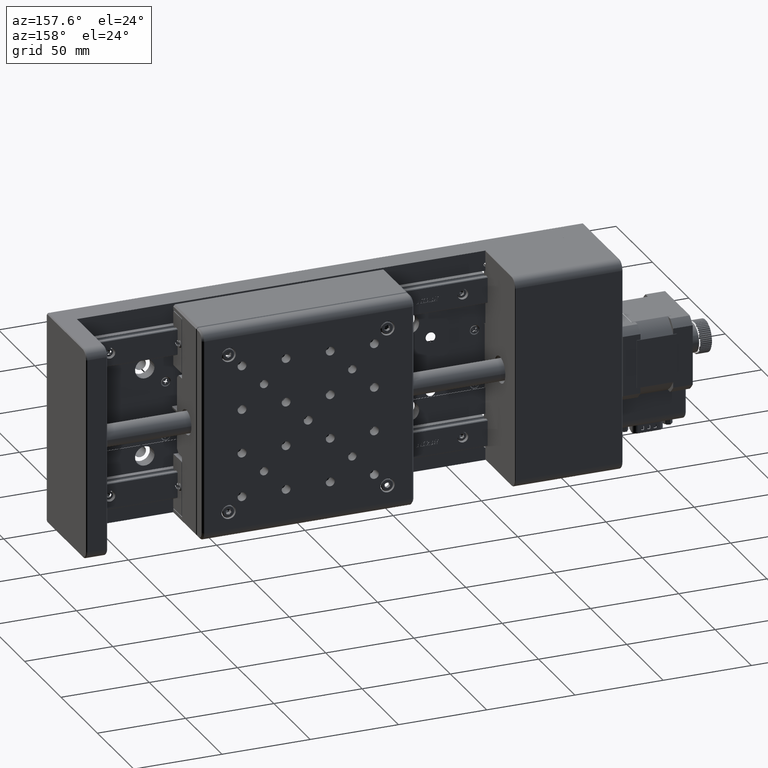
[diagram: clean part render]
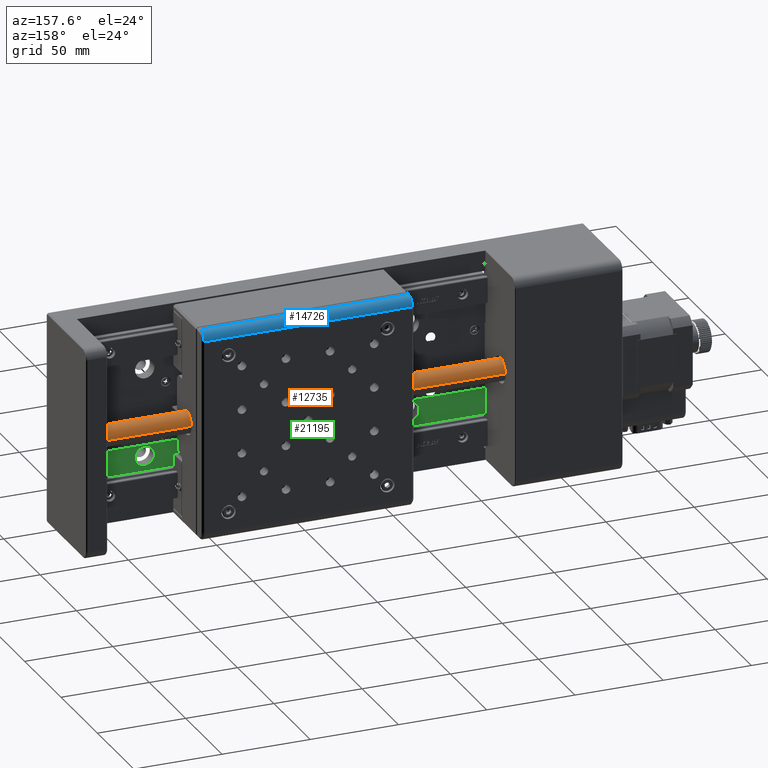
[diagram: same view with three faces highlighted in distinct colors, each labeled with its STEP entity id]
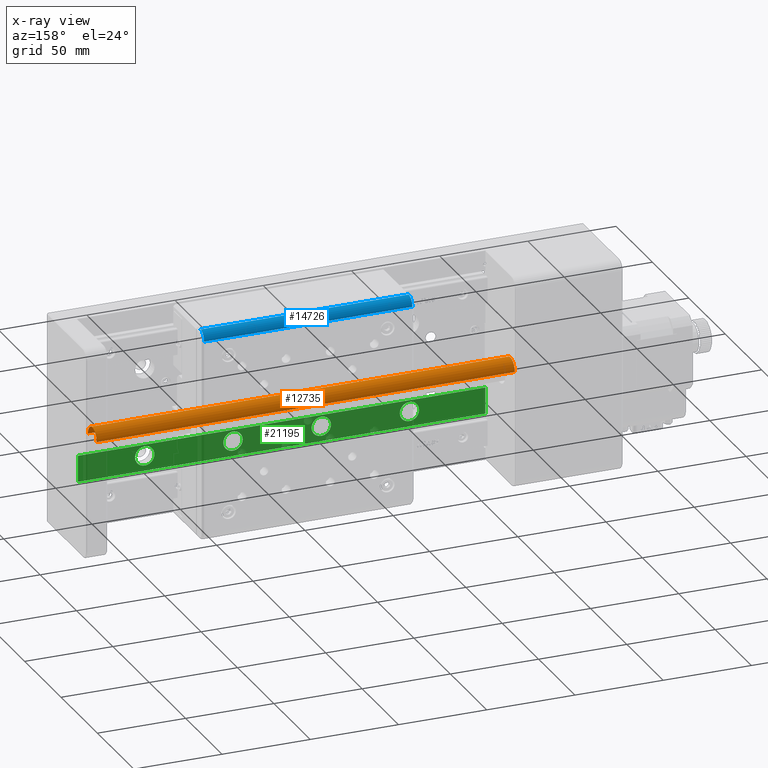
[diagram: x-ray of the same camera — body ghosted, the three highlighted faces saturated]
A machine part, auxiliary view with three faces highlighted in distinct colors.
The next image is the same camera in x-ray (body ghosted, the three faces saturated) — at least one of them is partly hidden behind the body in this view.
Their STEP definitions:

[orange] entity #12735 — the highlighted cylindrical surface (edge-blend (fillet) strip) has radius 6 mm, axis along (-1, 0, 0).
#539 = CARTESIAN_POINT ( 'NONE',  ( 63.90769514383990200, 40.00000000000188300, 39.77887723323596700 ) ) ;
#2989 = LINE ( 'NONE', #21811, #44714 ) ;
#3423 = LINE ( 'NONE', #5527, #40380 ) ;
#3605 = DIRECTION ( 'NONE',  ( -1.000000000000000000, 5.122232578805212300E-016, 6.938893494418824300E-016 ) ) ;
#4115 = DIRECTION ( 'NONE',  ( 0.0000000000000000000, -1.000000000000000000, 5.782411586589354900E-015 ) ) ;
#5527 = CARTESIAN_POINT ( 'NONE',  ( 63.90769514383990200, 40.00000000000189000, 39.77887723323588900 ) ) ;
#6024 = CARTESIAN_POINT ( 'NONE',  ( 63.90769514383990200, 34.00000000000188300, 39.77887723323591700 ) ) ;
#6176 = VERTEX_POINT ( 'NONE', #27948 ) ;
#7235 = CARTESIAN_POINT ( 'NONE',  ( 63.90769514383990200, 34.00000000000188300, 39.77887723323591700 ) ) ;
#7687 = ORIENTED_EDGE ( 'NONE', *, *, #35850, .T. ) ;
#9618 = ORIENTED_EDGE ( 'NONE', *, *, #33453, .F. ) ;
#11002 = EDGE_LOOP ( 'NONE', ( #19257, #7687, #9618, #27976 ) ) ;
#11706 = VERTEX_POINT ( 'NONE', #29613 ) ;
#12735 = ADVANCED_FACE ( 'NONE', ( #28528 ), #29136, .T. ) ;
#15036 = DIRECTION ( 'NONE',  ( 0.0000000000000000000, 1.000000000000000000, -5.782411586589351700E-015 ) ) ;
#15287 = CARTESIAN_POINT ( 'NONE',  ( -173.0923048561601000, 34.00000000000200400, 39.77887723323608800 ) ) ;
#18237 = CIRCLE ( 'NONE', #39597, 6.000000000000005300 ) ;
#19145 = VERTEX_POINT ( 'NONE', #35813 ) ;
#19257 = ORIENTED_EDGE ( 'NONE', *, *, #30438, .F. ) ;
#20824 = AXIS2_PLACEMENT_3D ( 'NONE', #6024, #40509, #25322 ) ;
#21811 = CARTESIAN_POINT ( 'NONE',  ( 63.90769514383990200, 28.00000000000187900, 39.77887723323595300 ) ) ;
#23349 = CIRCLE ( 'NONE', #24693, 6.000000000000001800 ) ;
#24693 = AXIS2_PLACEMENT_3D ( 'NONE', #15287, #3605, #4115 ) ;
#25322 = DIRECTION ( 'NONE',  ( 0.0000000000000000000, -1.000000000000000000, 5.782411586589354900E-015 ) ) ;
#27948 = CARTESIAN_POINT ( 'NONE',  ( -173.0923048561601000, 40.00000000000199700, 39.77887723323596700 ) ) ;
#27965 = EDGE_CURVE ( 'NONE', #19145, #11706, #2989, .T. ) ;
#27976 = ORIENTED_EDGE ( 'NONE', *, *, #27965, .F. ) ;
#28528 = FACE_OUTER_BOUND ( 'NONE', #11002, .T. ) ;
#29136 = CYLINDRICAL_SURFACE ( 'NONE', #20824, 6.000000000000001800 ) ;
#29613 = CARTESIAN_POINT ( 'NONE',  ( -173.0923048561601000, 28.00000000000200000, 39.77887723323612300 ) ) ;
#30438 = EDGE_CURVE ( 'NONE', #35728, #19145, #18237, .T. ) ;
#33453 = EDGE_CURVE ( 'NONE', #11706, #6176, #23349, .T. ) ;
#35728 = VERTEX_POINT ( 'NONE', #539 ) ;
#35813 = CARTESIAN_POINT ( 'NONE',  ( 63.90769514383990200, 28.00000000000187900, 39.77887723323603800 ) ) ;
#35850 = EDGE_CURVE ( 'NONE', #35728, #6176, #3423, .T. ) ;
#39376 = DIRECTION ( 'NONE',  ( -1.000000000000000000, 5.122232578805212300E-016, 6.938893494418824300E-016 ) ) ;
#39597 = AXIS2_PLACEMENT_3D ( 'NONE', #7235, #45317, #15036 ) ;
#40380 = VECTOR ( 'NONE', #39376, 1000.000000000000000 ) ;
#40509 = DIRECTION ( 'NONE',  ( -1.000000000000000000, 5.122232578805212300E-016, 6.938893494418824300E-016 ) ) ;
#44714 = VECTOR ( 'NONE', #47945, 1000.000000000000000 ) ;
#45317 = DIRECTION ( 'NONE',  ( 1.000000000000000000, -5.122232578805212300E-016, -6.938893494418824300E-016 ) ) ;
#47945 = DIRECTION ( 'NONE',  ( -1.000000000000000000, 5.122232578805212300E-016, 6.938893494418824300E-016 ) ) ;

[blue] entity #14726 — the highlighted cylindrical surface (edge-blend (fillet) strip) has radius 5 mm, axis along (1, 0, -0).
#734 = VERTEX_POINT ( 'NONE', #19056 ) ;
#1232 = EDGE_CURVE ( 'NONE', #1631, #7970, #20779, .T. ) ;
#1631 = VERTEX_POINT ( 'NONE', #15731 ) ;
#2258 = LINE ( 'NONE', #25905, #35017 ) ;
#3037 = CARTESIAN_POINT ( 'NONE',  ( 9.594010902184861000, 50.99999999999892000, 94.77887723323857500 ) ) ;
#3854 = EDGE_CURVE ( 'NONE', #734, #7970, #28297, .T. ) ;
#4845 = DIRECTION ( 'NONE',  ( -1.000000000000000000, -1.083698070157791000E-016, 1.727014250132936800E-016 ) ) ;
#5081 = ORIENTED_EDGE ( 'NONE', *, *, #3854, .F. ) ;
#5264 = AXIS2_PLACEMENT_3D ( 'NONE', #22670, #42018, #26812 ) ;
#6402 = CARTESIAN_POINT ( 'NONE',  ( -108.4059890978151500, 50.99999999999883500, 99.77887723323858900 ) ) ;
#6508 = DIRECTION ( 'NONE',  ( 1.000000000000000000, 1.083698070157791000E-016, -1.727014250132936800E-016 ) ) ;
#6661 = ORIENTED_EDGE ( 'NONE', *, *, #1232, .T. ) ;
#7970 = VERTEX_POINT ( 'NONE', #6402 ) ;
#9248 = VECTOR ( 'NONE', #4845, 1000.000000000000000 ) ;
#10721 = DIRECTION ( 'NONE',  ( -1.000000000000000000, -1.083698070157791000E-016, 1.727014250132936800E-016 ) ) ;
#14337 = DIRECTION ( 'NONE',  ( 0.0000000000000000000, -1.000000000000000000, -1.387778780781446500E-014 ) ) ;
#14710 = DIRECTION ( 'NONE',  ( 0.0000000000000000000, 1.000000000000000000, 1.387778780781446500E-014 ) ) ;
#14726 = ADVANCED_FACE ( 'NONE', ( #43271 ), #29517, .T. ) ;
#15731 = CARTESIAN_POINT ( 'NONE',  ( -108.4059890978151400, 55.99999999999890600, 94.77887723323866000 ) ) ;
#18141 = CARTESIAN_POINT ( 'NONE',  ( -49.40598909781513700, 50.99999999999891300, 94.77887723323857500 ) ) ;
#19056 = CARTESIAN_POINT ( 'NONE',  ( 9.594010902184861000, 50.99999999999884900, 99.77887723323858900 ) ) ;
#20603 = AXIS2_PLACEMENT_3D ( 'NONE', #18141, #6508, #14337 ) ;
#20779 = CIRCLE ( 'NONE', #5264, 4.999999999999997300 ) ;
#22670 = CARTESIAN_POINT ( 'NONE',  ( -108.4059890978151400, 50.99999999999890600, 94.77887723323858900 ) ) ;
#25741 = ORIENTED_EDGE ( 'NONE', *, *, #35623, .T. ) ;
#25905 = CARTESIAN_POINT ( 'NONE',  ( -49.40598909781513700, 55.99999999999891300, 94.77887723323866000 ) ) ;
#26812 = DIRECTION ( 'NONE',  ( 0.0000000000000000000, -1.000000000000000000, -1.387778780781446500E-014 ) ) ;
#28297 = LINE ( 'NONE', #49484, #9248 ) ;
#29418 = DIRECTION ( 'NONE',  ( 1.000000000000000000, 1.083698070157791000E-016, -1.727014250132936800E-016 ) ) ;
#29517 = CYLINDRICAL_SURFACE ( 'NONE', #20603, 4.999999999999997300 ) ;
#30434 = CARTESIAN_POINT ( 'NONE',  ( 9.594010902184861000, 55.99999999999892000, 94.77887723323864600 ) ) ;
#31865 = EDGE_LOOP ( 'NONE', ( #5081, #25741, #44165, #6661 ) ) ;
#33542 = VERTEX_POINT ( 'NONE', #30434 ) ;
#35017 = VECTOR ( 'NONE', #29418, 1000.000000000000000 ) ;
#35623 = EDGE_CURVE ( 'NONE', #734, #33542, #44581, .T. ) ;
#42018 = DIRECTION ( 'NONE',  ( 1.000000000000000000, 1.083698070157791000E-016, -1.727014250132936800E-016 ) ) ;
#43271 = FACE_OUTER_BOUND ( 'NONE', #31865, .T. ) ;
#44165 = ORIENTED_EDGE ( 'NONE', *, *, #44943, .F. ) ;
#44581 = CIRCLE ( 'NONE', #45877, 4.999999999999997300 ) ;
#44943 = EDGE_CURVE ( 'NONE', #1631, #33542, #2258, .T. ) ;
#45877 = AXIS2_PLACEMENT_3D ( 'NONE', #3037, #10721, #14710 ) ;
#49484 = CARTESIAN_POINT ( 'NONE',  ( 10.59401090218486300, 50.99999999999884900, 99.77887723323858900 ) ) ;

[green] entity #21195 — the highlighted planar face has unit normal (0, 1, -0).
#783 = DIRECTION ( 'NONE',  ( 0.0000000000000000000, 1.224646799147353200E-016, 1.000000000000000000 ) ) ;
#1576 = CARTESIAN_POINT ( 'NONE',  ( -79.59230485615998400, 14.00000000000000200, 14.77887723323781400 ) ) ;
#2154 = EDGE_CURVE ( 'NONE', #3589, #42386, #4619, .T. ) ;
#2536 = VERTEX_POINT ( 'NONE', #30123 ) ;
#2628 = EDGE_CURVE ( 'NONE', #24256, #23442, #39725, .T. ) ;
#2634 = ORIENTED_EDGE ( 'NONE', *, *, #35434, .F. ) ;
#2880 = DIRECTION ( 'NONE',  ( -0.0000000000000000000, 1.000000000000000000, -1.224646799147353200E-016 ) ) ;
#3589 = VERTEX_POINT ( 'NONE', #31892 ) ;
#3618 = AXIS2_PLACEMENT_3D ( 'NONE', #5224, #36028, #39560 ) ;
#3943 = ORIENTED_EDGE ( 'NONE', *, *, #36302, .F. ) ;
#4395 = EDGE_CURVE ( 'NONE', #6672, #35427, #32604, .T. ) ;
#4418 = CARTESIAN_POINT ( 'NONE',  ( -124.0923048561599700, 14.00000000000000200, 14.77887723323781400 ) ) ;
#4619 = CIRCLE ( 'NONE', #37517, 5.500000000000005300 ) ;
#4774 = EDGE_LOOP ( 'NONE', ( #37338, #48124 ) ) ;
#5085 = ORIENTED_EDGE ( 'NONE', *, *, #24659, .F. ) ;
#5224 = CARTESIAN_POINT ( 'NONE',  ( -24.09230485615997000, 14.00000000000000200, 14.77887723323781400 ) ) ;
#6672 = VERTEX_POINT ( 'NONE', #36169 ) ;
#7390 = DIRECTION ( 'NONE',  ( -1.000000000000000000, 0.0000000000000000000, 0.0000000000000000000 ) ) ;
#7434 = FACE_BOUND ( 'NONE', #4774, .T. ) ;
#8255 = VERTEX_POINT ( 'NONE', #28635 ) ;
#8318 = EDGE_LOOP ( 'NONE', ( #27261, #34021 ) ) ;
#8363 = VECTOR ( 'NONE', #32528, 1000.000000000000000 ) ;
#8698 = CARTESIAN_POINT ( 'NONE',  ( 25.90769514384003000, 14.00000000000000200, 14.77887723323781400 ) ) ;
#9081 = AXIS2_PLACEMENT_3D ( 'NONE', #40910, #33426, #22082 ) ;
#9421 = CARTESIAN_POINT ( 'NONE',  ( 63.90769514384002300, 14.00000000000000400, 21.27887723323782900 ) ) ;
#9490 = CARTESIAN_POINT ( 'NONE',  ( -167.0923048561600100, 14.00000000000000400, 21.27887723323781800 ) ) ;
#9966 = AXIS2_PLACEMENT_3D ( 'NONE', #15929, #19071, #38440 ) ;
#10327 = CARTESIAN_POINT ( 'NONE',  ( 31.40769514384003700, 14.00000000000000200, 14.77887723323781400 ) ) ;
#10387 = FACE_OUTER_BOUND ( 'NONE', #24239, .T. ) ;
#10586 = VERTEX_POINT ( 'NONE', #9490 ) ;
#11210 = ORIENTED_EDGE ( 'NONE', *, *, #31160, .F. ) ;
#11953 = PLANE ( 'NONE',  #9966 ) ;
#12127 = DIRECTION ( 'NONE',  ( -0.0000000000000000000, 1.000000000000000000, -1.224646799147353200E-016 ) ) ;
#12187 = CIRCLE ( 'NONE', #22427, 5.499999999999991100 ) ;
#12715 = DIRECTION ( 'NONE',  ( -1.000000000000000000, 0.0000000000000000000, 0.0000000000000000000 ) ) ;
#13035 = LINE ( 'NONE', #9421, #29088 ) ;
#13880 = VERTEX_POINT ( 'NONE', #22908 ) ;
#14261 = CIRCLE ( 'NONE', #3618, 5.500000000000005300 ) ;
#14381 = EDGE_CURVE ( 'NONE', #2536, #13880, #43322, .T. ) ;
#14639 = CIRCLE ( 'NONE', #31919, 5.500000000000005300 ) ;
#15526 = VERTEX_POINT ( 'NONE', #25220 ) ;
#15929 = CARTESIAN_POINT ( 'NONE',  ( 75.90769514384000200, 14.00000000000001200, 99.77887723323783600 ) ) ;
#16006 = AXIS2_PLACEMENT_3D ( 'NONE', #37380, #2880, #29551 ) ;
#16528 = VECTOR ( 'NONE', #32632, 1000.000000000000000 ) ;
#16547 = ORIENTED_EDGE ( 'NONE', *, *, #4395, .F. ) ;
#17476 = DIRECTION ( 'NONE',  ( -1.000000000000000000, 0.0000000000000000000, 0.0000000000000000000 ) ) ;
#18281 = LINE ( 'NONE', #28137, #16528 ) ;
#19071 = DIRECTION ( 'NONE',  ( 0.0000000000000000000, 1.000000000000000000, -1.224646799147353200E-016 ) ) ;
#20189 = VERTEX_POINT ( 'NONE', #26680 ) ;
#20335 = DIRECTION ( 'NONE',  ( -0.0000000000000000000, 1.000000000000000000, -1.224646799147353200E-016 ) ) ;
#21195 = ADVANCED_FACE ( 'NONE', ( #10387, #7434, #38425, #33621, #46115 ), #11953, .T. ) ;
#21507 = CARTESIAN_POINT ( 'NONE',  ( -167.0923048561600100, 13.99999999999999800, -12.22112276676221000 ) ) ;
#22024 = EDGE_LOOP ( 'NONE', ( #11210, #16547 ) ) ;
#22082 = DIRECTION ( 'NONE',  ( -1.000000000000000000, 0.0000000000000000000, 0.0000000000000000000 ) ) ;
#22371 = DIRECTION ( 'NONE',  ( -0.0000000000000000000, 1.000000000000000000, -1.224646799147353200E-016 ) ) ;
#22427 = AXIS2_PLACEMENT_3D ( 'NONE', #41413, #22896, #45208 ) ;
#22612 = EDGE_CURVE ( 'NONE', #15526, #20189, #12187, .T. ) ;
#22896 = DIRECTION ( 'NONE',  ( -0.0000000000000000000, 1.000000000000000000, -1.224646799147353200E-016 ) ) ;
#22908 = CARTESIAN_POINT ( 'NONE',  ( -29.59230485615997700, 14.00000000000000200, 14.77887723323781400 ) ) ;
#23331 = CARTESIAN_POINT ( 'NONE',  ( 63.90769514384002300, 14.00000000000000400, 21.27887723323782900 ) ) ;
#23442 = VERTEX_POINT ( 'NONE', #23331 ) ;
#24239 = EDGE_LOOP ( 'NONE', ( #5085, #2634, #42625, #3943 ) ) ;
#24256 = VERTEX_POINT ( 'NONE', #29896 ) ;
#24659 = EDGE_CURVE ( 'NONE', #10586, #8255, #35157, .T. ) ;
#24813 = ORIENTED_EDGE ( 'NONE', *, *, #42131, .F. ) ;
#25220 = CARTESIAN_POINT ( 'NONE',  ( -118.5923048561599700, 14.00000000000000200, 14.77887723323781400 ) ) ;
#26680 = CARTESIAN_POINT ( 'NONE',  ( -129.5923048561599600, 14.00000000000000200, 14.77887723323781400 ) ) ;
#27030 = ORIENTED_EDGE ( 'NONE', *, *, #14381, .F. ) ;
#27261 = ORIENTED_EDGE ( 'NONE', *, *, #2154, .F. ) ;
#28137 = CARTESIAN_POINT ( 'NONE',  ( -182.0923048561600100, 14.00000000000000200, 6.278877233237826900 ) ) ;
#28238 = DIRECTION ( 'NONE',  ( -1.000000000000000000, 0.0000000000000000000, 0.0000000000000000000 ) ) ;
#28635 = CARTESIAN_POINT ( 'NONE',  ( -167.0923048561600100, 14.00000000000000200, 6.278877233237819800 ) ) ;
#29088 = VECTOR ( 'NONE', #28238, 1000.000000000000000 ) ;
#29551 = DIRECTION ( 'NONE',  ( -1.000000000000000000, 0.0000000000000000000, 0.0000000000000000000 ) ) ;
#29896 = CARTESIAN_POINT ( 'NONE',  ( 63.90769514384002300, 14.00000000000000200, 6.278877233237799300 ) ) ;
#30123 = CARTESIAN_POINT ( 'NONE',  ( -18.59230485615996600, 14.00000000000000200, 14.77887723323781400 ) ) ;
#30949 = CARTESIAN_POINT ( 'NONE',  ( 63.90769514384002300, 13.99999999999999800, -15.22112276676217100 ) ) ;
#31160 = EDGE_CURVE ( 'NONE', #35427, #6672, #14639, .T. ) ;
#31504 = CIRCLE ( 'NONE', #37303, 5.499999999999991100 ) ;
#31892 = CARTESIAN_POINT ( 'NONE',  ( 20.40769514384002600, 14.00000000000000200, 14.77887723323781400 ) ) ;
#31919 = AXIS2_PLACEMENT_3D ( 'NONE', #40295, #40131, #17476 ) ;
#32528 = DIRECTION ( 'NONE',  ( -0.0000000000000000000, -1.224646799147353200E-016, -1.000000000000000000 ) ) ;
#32554 = VECTOR ( 'NONE', #783, 1000.000000000000000 ) ;
#32604 = CIRCLE ( 'NONE', #9081, 5.500000000000005300 ) ;
#32632 = DIRECTION ( 'NONE',  ( 1.000000000000000000, -1.381738895779361100E-032, -1.128275431529630700E-016 ) ) ;
#33426 = DIRECTION ( 'NONE',  ( -0.0000000000000000000, 1.000000000000000000, -1.224646799147353200E-016 ) ) ;
#33621 = FACE_BOUND ( 'NONE', #34642, .T. ) ;
#34021 = ORIENTED_EDGE ( 'NONE', *, *, #48577, .F. ) ;
#34642 = EDGE_LOOP ( 'NONE', ( #24813, #27030 ) ) ;
#35157 = LINE ( 'NONE', #21507, #8363 ) ;
#35427 = VERTEX_POINT ( 'NONE', #1576 ) ;
#35434 = EDGE_CURVE ( 'NONE', #23442, #10586, #13035, .T. ) ;
#36028 = DIRECTION ( 'NONE',  ( -0.0000000000000000000, 1.000000000000000000, -1.224646799147353200E-016 ) ) ;
#36169 = CARTESIAN_POINT ( 'NONE',  ( -68.59230485615997000, 14.00000000000000200, 14.77887723323781400 ) ) ;
#36302 = EDGE_CURVE ( 'NONE', #8255, #24256, #18281, .T. ) ;
#37303 = AXIS2_PLACEMENT_3D ( 'NONE', #4418, #12127, #42605 ) ;
#37338 = ORIENTED_EDGE ( 'NONE', *, *, #45048, .F. ) ;
#37380 = CARTESIAN_POINT ( 'NONE',  ( 25.90769514384003000, 14.00000000000000200, 14.77887723323781400 ) ) ;
#37517 = AXIS2_PLACEMENT_3D ( 'NONE', #8698, #20335, #12715 ) ;
#37879 = CARTESIAN_POINT ( 'NONE',  ( -24.09230485615997000, 14.00000000000000200, 14.77887723323781400 ) ) ;
#38425 = FACE_BOUND ( 'NONE', #8318, .T. ) ;
#38440 = DIRECTION ( 'NONE',  ( -1.000000000000000000, 0.0000000000000000000, 0.0000000000000000000 ) ) ;
#39560 = DIRECTION ( 'NONE',  ( -1.000000000000000000, 0.0000000000000000000, 0.0000000000000000000 ) ) ;
#39725 = LINE ( 'NONE', #30949, #32554 ) ;
#40131 = DIRECTION ( 'NONE',  ( -0.0000000000000000000, 1.000000000000000000, -1.224646799147353200E-016 ) ) ;
#40295 = CARTESIAN_POINT ( 'NONE',  ( -74.09230485615997000, 14.00000000000000200, 14.77887723323781400 ) ) ;
#40677 = AXIS2_PLACEMENT_3D ( 'NONE', #37879, #22371, #7390 ) ;
#40910 = CARTESIAN_POINT ( 'NONE',  ( -74.09230485615997000, 14.00000000000000200, 14.77887723323781400 ) ) ;
#41413 = CARTESIAN_POINT ( 'NONE',  ( -124.0923048561599700, 14.00000000000000200, 14.77887723323781400 ) ) ;
#42131 = EDGE_CURVE ( 'NONE', #13880, #2536, #14261, .T. ) ;
#42386 = VERTEX_POINT ( 'NONE', #10327 ) ;
#42605 = DIRECTION ( 'NONE',  ( -1.000000000000000000, 0.0000000000000000000, 0.0000000000000000000 ) ) ;
#42625 = ORIENTED_EDGE ( 'NONE', *, *, #2628, .F. ) ;
#43322 = CIRCLE ( 'NONE', #40677, 5.500000000000005300 ) ;
#44940 = CIRCLE ( 'NONE', #16006, 5.500000000000005300 ) ;
#45048 = EDGE_CURVE ( 'NONE', #20189, #15526, #31504, .T. ) ;
#45208 = DIRECTION ( 'NONE',  ( -1.000000000000000000, 0.0000000000000000000, 0.0000000000000000000 ) ) ;
#46115 = FACE_BOUND ( 'NONE', #22024, .T. ) ;
#48124 = ORIENTED_EDGE ( 'NONE', *, *, #22612, .F. ) ;
#48577 = EDGE_CURVE ( 'NONE', #42386, #3589, #44940, .T. ) ;